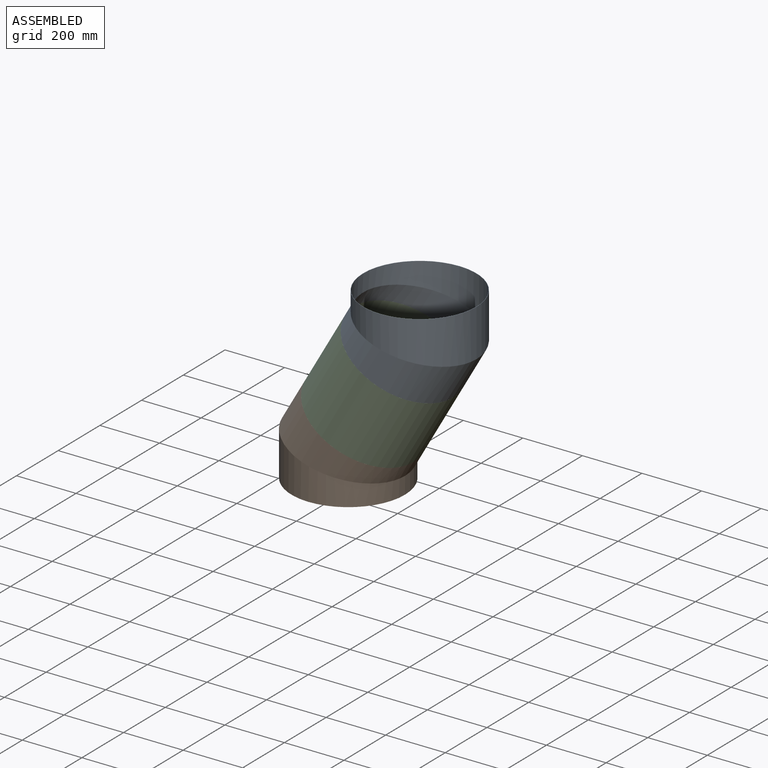
[diagram: assembled view]
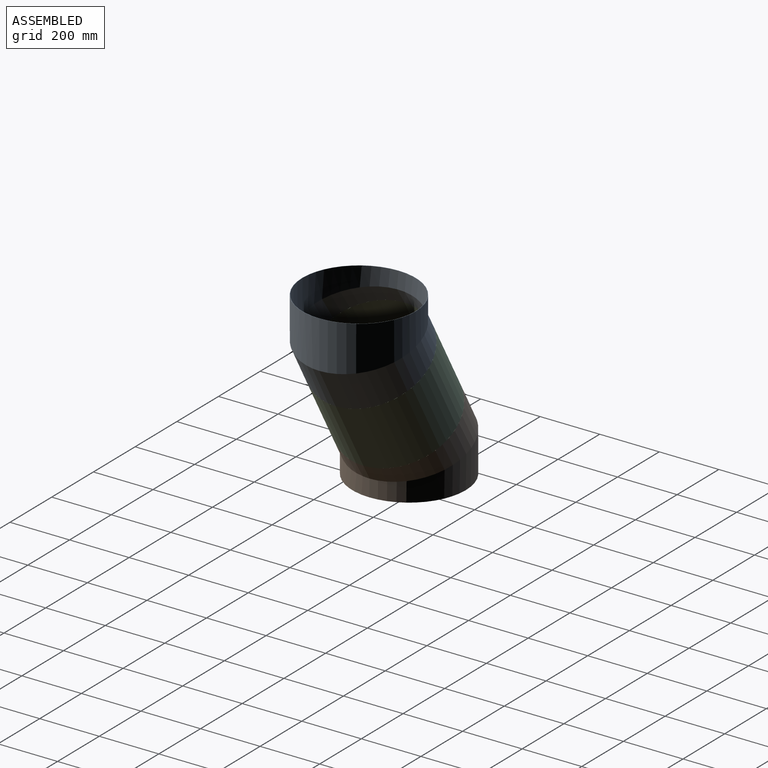
[diagram: assembled view, second angle]
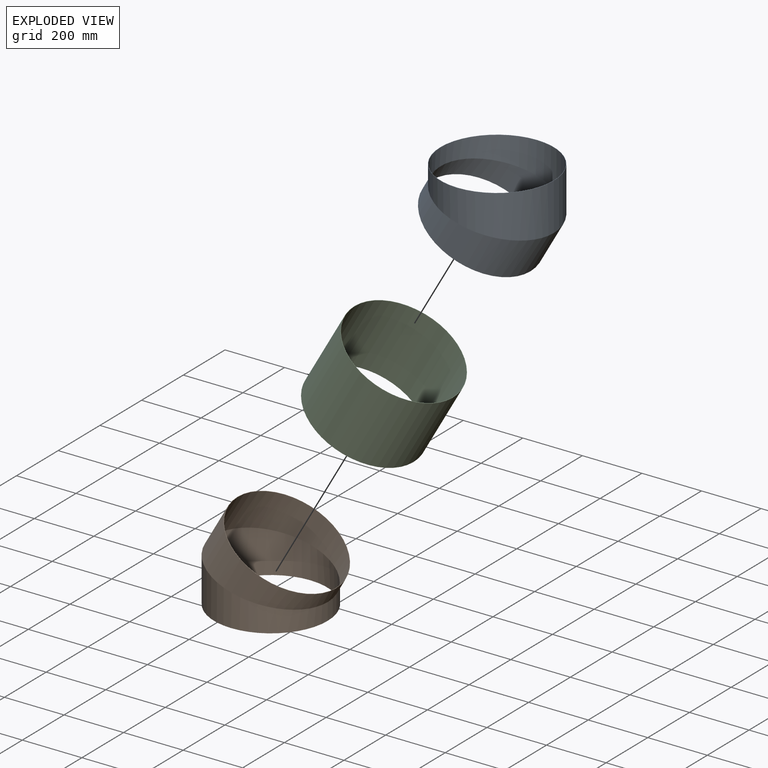
[diagram: exploded view]
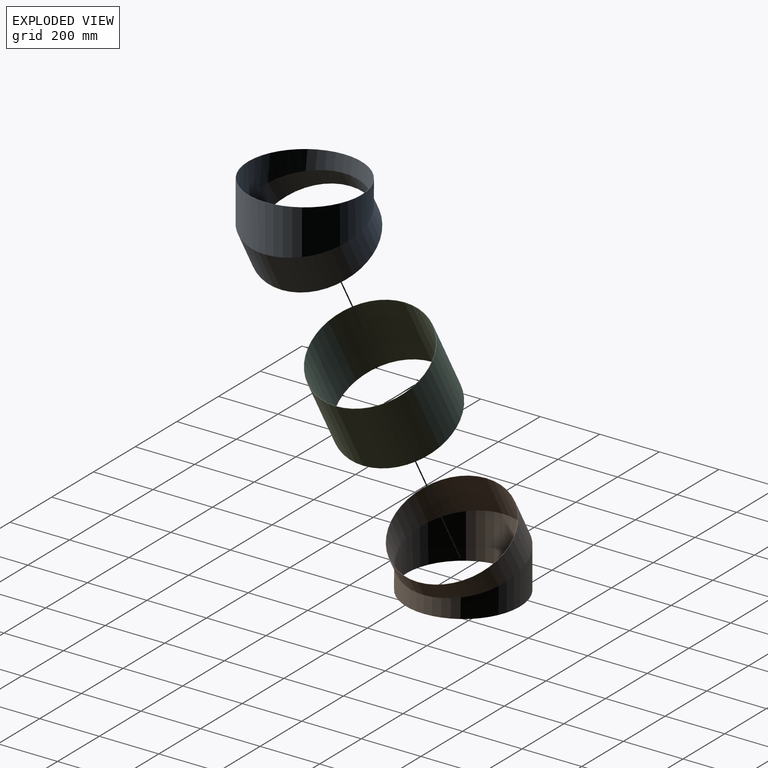
[diagram: exploded view, second angle]
ASSEMBLY  parts=3 mates=2
PART A: 6 faces, bbox 409.5x381x327.4 mm
  f0: plane 381x330.41mm, normal (0.5,0,-0.87), area 1152.4mm2, adj f2,f4
  f1: plane 381x381mm, normal (0,0,1), area 1152.4mm2, adj f3,f5
  f2: cylinder r=190.5mm len=409.47mm, axis (0.5,0,-0.87), area 129211.3mm2, adj f0,f3
  f3: cylinder r=190.5mm len=381mm, axis (0,0,-1), area 129211.3mm2, adj f1,f2
  f4: cylinder r=189.53mm len=407.74mm, axis (0.5,0,-0.87), area 128554.9mm2, adj f0,f5
  f5: cylinder r=189.53mm len=379.07mm, axis (0,0,-1), area 128554.9mm2, adj f1,f4
PART B: same geometry as A
PART C: 4 faces, bbox 381x381x266.7 mm
  f0: cylinder r=190.5mm len=381mm, axis (0,0,-1), area 319225.7mm2, adj f1,f2
  f1: plane 381x381mm, normal (0,0,1), area 1152.4mm2, adj f0,f3
  f2: plane 381x381mm, normal (0,0,-1), area 1152.4mm2, adj f0,f3
  f3: cylinder r=189.53mm len=379.07mm, axis (0,0,-1), area 317608.3mm2, adj f1,f2
PLACE A rot(axis=(0,0,-1),180deg) t=(170.53,-108.63,-1560.68)mm
PLACE B rot(axis=(0,1,0),29.9deg) t=(-16.02,-108.63,-1993.54)mm
PLACE C rot(axis=(0,1,0),29.9deg) t=(-16.02,-108.63,-1993.54)mm
MATE fastened B.f3 <-> C.f0  axis (0.5,0,0.87) through (-16.02,-108.63,-1993.54)mm
MATE fastened C.f0 <-> A.f2  axis (0.5,0,0.87) through (116.78,-108.63,-1762.25)mm
